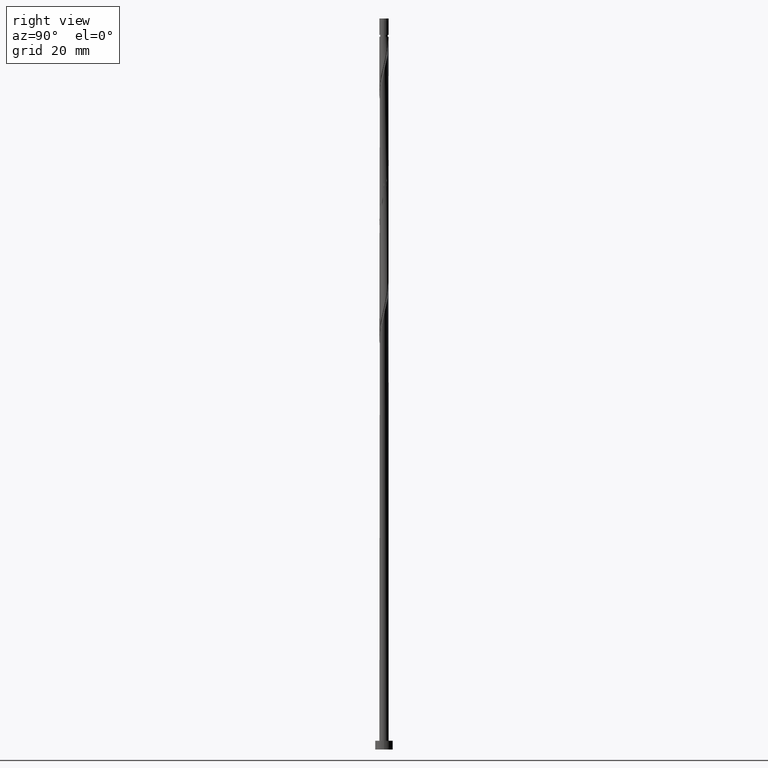
[diagram: clean part render]
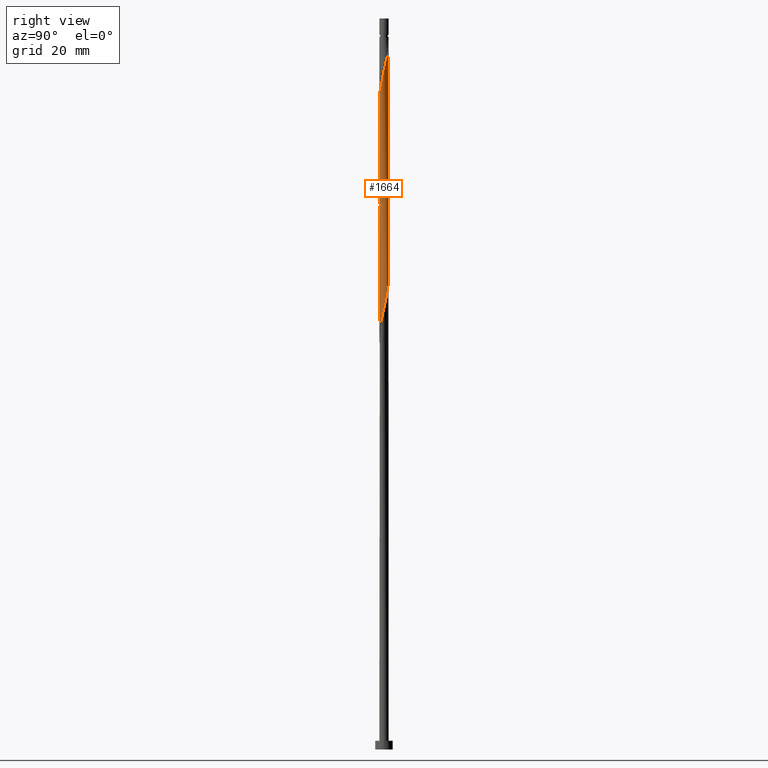
[diagram: same view with one face highlighted and labeled with its STEP entity id]
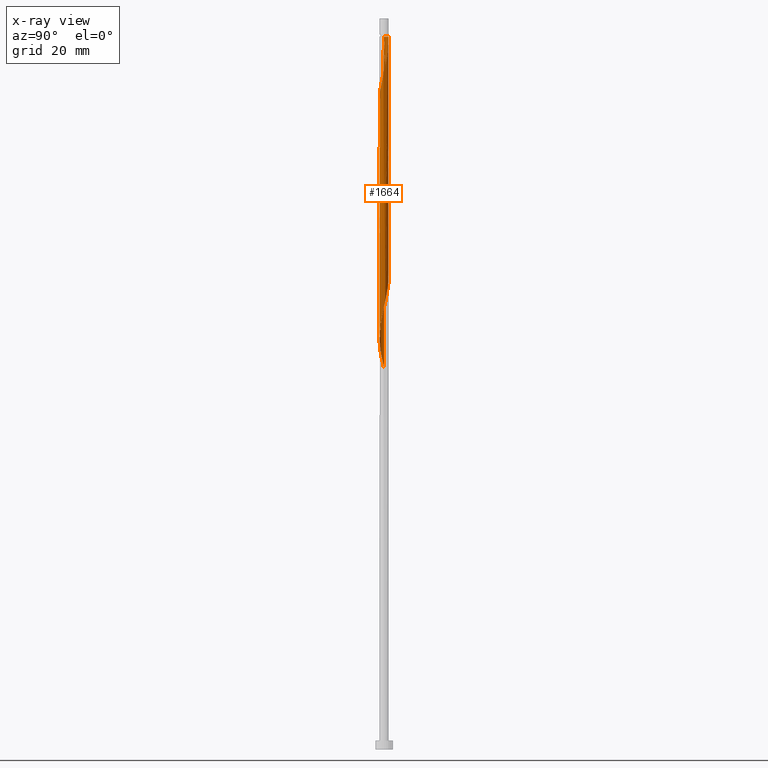
[diagram: x-ray of the same camera — body ghosted, the highlighted face saturated]
A machine part, right view. The second image highlights one B-rep face of the part: STEP entity #1664.
The next image is the same camera in x-ray: the body ghosted, the highlighted face saturated — about 0% of this face is hidden behind the body in this view.
In plain terms, the highlighted cylindrical surface (bore or boss wall) has radius 1.6 mm, axis along (-0, -0, -1).
Its self-contained STEP definition (entity closure, byte-faithful):
#3 = CARTESIAN_POINT ( 'NONE',  ( 0.6333082990155188829, -1.482114516932721004, 143.6120116939671902 ) ) ;
#7 = CARTESIAN_POINT ( 'NONE',  ( -0.6843909329630175620, -1.446239624293986115, 179.6697040016595395 ) ) ;
#12 = CARTESIAN_POINT ( 'NONE',  ( -1.394971353447186813, -0.8073399321019413266, 133.9966270785826055 ) ) ;
#33 = LINE ( 'NONE', #1484, #836 ) ;
#44 = CARTESIAN_POINT ( 'NONE',  ( 1.594945909006415086, -0.1270730000578390861, 150.8235501555056999 ) ) ;
#46 = EDGE_CURVE ( 'NONE', #247, #1329, #1355, .T. ) ;
#67 = CARTESIAN_POINT ( 'NONE',  ( -1.600000000000002531, -0.06363700853883506869, 211.4585171439647695 ) ) ;
#78 = CARTESIAN_POINT ( 'NONE',  ( -1.518189120165080785, 0.5050760293385311295, 211.7209860529415835 ) ) ;
#81 = CARTESIAN_POINT ( 'NONE',  ( 1.594945909006418638, 0.1270730000578370045, 232.5543193862749831 ) ) ;
#87 = CARTESIAN_POINT ( 'NONE',  ( 0.8014535150113176742, -1.384800441679595151, 186.0799604119159767 ) ) ;
#91 = DIRECTION ( 'NONE',  ( -0.000000000000000000, -0.000000000000000000, -1.000000000000000000 ) ) ;
#105 = CARTESIAN_POINT ( 'NONE',  ( 1.579516453325393144, 0.3207344954616280219, 233.3556014375570555 ) ) ;
#108 = EDGE_CURVE ( 'NONE', #1136, #365, #274, .T. ) ;
#151 = CARTESIAN_POINT ( 'NONE',  ( 1.547645113330139433, 0.4500416048433567573, 194.8940629760184891 ) ) ;
#152 =( BOUNDED_CURVE ( )  B_SPLINE_CURVE ( 2, ( #230, #1195, #763, #215, #899, #503, #1170, #643, #335, #885, #87, #617, #1688, #1558, #1103, #1621, #824, #421, #7, #652, #967, #512, #1072, #254, #1059, #1581, #388, #376, #1447, #782, #791, #1409, #1685, #1673, #464, #872, #1181, #1400, #1035, #1153, #1683, #1021, #737, #613, #1561, #209, #1553, #874, #166, #689, #1464, #1477, #1275, #155, #44, #277, #571, #708, #1120, #449, #1636, #981, #842, #3, #540, #1344, #659, #942, #1466, #1068, #508, #639, #1078, #813, #954, #12, #1089, #1714, #383, #1055, #931 ),
 .UNSPECIFIED., .F., .T. ) 
 B_SPLINE_CURVE_WITH_KNOTS ( ( 3, 2, 2, 2, 2, 2, 2, 2, 2, 2, 2, 2, 2, 2, 2, 2, 2, 2, 2, 2, 2, 2, 2, 2, 2, 2, 2, 2, 2, 2, 2, 2, 2, 2, 2, 2, 2, 2, 2, 2, 3 ),
 ( 0.5545271625973832164, 0.5576923076923077094, 0.5673076923076922906, 0.5769230769230768718, 0.5865384615384615641, 0.5961538461538461453, 0.6057692307692307265, 0.6153846153846154188, 0.6250000000000000000, 0.6346153846153845812, 0.6442307692307692735, 0.6538461538461538547, 0.6634615384615384359, 0.6730769230769231282, 0.6826923076923077094, 0.6923076923076922906, 0.7019230769230768718, 0.7115384615384615641, 0.7211538461538461453, 0.7307692307692307265, 0.7403846153846154188, 0.7500000000000000000, 0.7596153846153845812, 0.7692307692307692735, 0.7788461538461538547, 0.7884615384615384359, 0.7980769230769231282, 0.8076923076923077094, 0.8173076923076922906, 0.8269230769230768718, 0.8365384615384615641, 0.8461538461538461453, 0.8557692307692307265, 0.8653846153846154188, 0.8750000000000000000, 0.8846153846153845812, 0.8942307692307692735, 0.9038461538461538547, 0.9134615384615384359, 0.9230769230769231282, 0.9295271625973832164 ),
 .UNSPECIFIED. ) 
 CURVE ( )  GEOMETRIC_REPRESENTATION_ITEM ( )  RATIONAL_B_SPLINE_CURVE ( ( 0.9061636035683077184, 0.9069090390690963677, 0.9090909090909530255, 0.9024626128164564554, 0.9090909090909530255, 0.9024626128164564554, 0.9090909090909530255, 0.9024626128164564554, 0.9090909090909530255, 0.9024626128164564554, 0.9090909090909530255, 0.9024626128164564554, 0.9090909090909530255, 0.9024626128164564554, 0.9090909090909530255, 0.9024626128164564554, 0.9090909090909530255, 0.9024626128164564554, 0.9090909090909530255, 0.9024626128164564554, 0.9090909090909530255, 0.9024626128164564554, 0.9090909090909530255, 0.9024626128164564554, 0.9090909090909530255, 0.9024626128164564554, 0.9090909090909530255, 0.9024626128164564554, 0.9090909090909530255, 0.9024626128164564554, 0.9090909090909530255, 0.9024626128164564554, 0.9090909090909530255, 0.9024626128164564554, 0.9090909090909530255, 0.9024626128164564554, 0.9090909090909530255, 0.9024626128164564554, 0.9090909090909530255, 0.9024626128164564554, 0.9090909090909530255, 0.9024626128164564554, 0.9090909090909530255, 0.9024626128164564554, 0.9090909090909530255, 0.9024626128164564554, 0.9090909090909530255, 0.9024626128164564554, 0.9090909090909530255, 0.9024626128164564554, 0.9090909090909530255, 0.9024626128164564554, 0.9090909090909530255, 0.9024626128164564554, 0.9090909090909530255, 0.9024626128164564554, 0.9090909090909530255, 0.9024626128164564554, 0.9090909090909530255, 0.9024626128164564554, 0.9090909090909530255, 0.9024626128164564554, 0.9090909090909530255, 0.9024626128164564554, 0.9090909090909530255, 0.9024626128164564554, 0.9090909090909530255, 0.9024626128164564554, 0.9090909090909530255, 0.9024626128164564554, 0.9090909090909530255, 0.9024626128164564554, 0.9090909090909530255, 0.9024626128164564554, 0.9090909090909530255, 0.9024626128164564554, 0.9090909090909530255, 0.9024626128164564554, 0.9090909090909530255, 0.9046444828383131131, 0.9061636035683077184 ) ) 
 REPRESENTATION_ITEM ( '' )  );
#155 = CARTESIAN_POINT ( 'NONE',  ( 1.610375364687439914, 0.06658849534595141784, 151.6248322067877439 ) ) ;
#159 = CARTESIAN_POINT ( 'NONE',  ( -0.3183959798741770042, 1.568000000000436822, 243.7722681042237980 ) ) ;
#166 = CARTESIAN_POINT ( 'NONE',  ( 1.278099141231814784, 0.9625292645849760076, 155.6312424631980491 ) ) ;
#187 = EDGE_CURVE ( 'NONE', #718, #1329, #1394, .T. ) ;
#195 = CARTESIAN_POINT ( 'NONE',  ( -1.353200698052673401, -0.8537258756707375440, 214.9261142580698731 ) ) ;
#202 = CARTESIAN_POINT ( 'NONE',  ( 1.278099141231817226, -0.9625292645849793383, 227.7466270785826339 ) ) ;
#209 = CARTESIAN_POINT ( 'NONE',  ( 0.8599962163594102593, 1.363139519914283060, 158.0350886170441527 ) ) ;
#215 = CARTESIAN_POINT ( 'NONE',  ( 1.579516453325389813, -0.3207344954616281885, 191.6889347708903131 ) ) ;
#217 = CARTESIAN_POINT ( 'NONE',  ( -0.1280063101816146798, 1.606660271326313394, 242.9709860529416687 ) ) ;
#222 = CARTESIAN_POINT ( 'NONE',  ( -0.8014535150113178963, 1.384800441679595151, 206.9132937452492911 ) ) ;
#223 = CARTESIAN_POINT ( 'NONE',  ( 1.010611572687928117, -1.240429058491150371, 226.1440629760185459 ) ) ;
#230 = CARTESIAN_POINT ( 'NONE',  ( 1.599999999999999867, 1.263776806062690875E-15, 193.0168566467822018 ) ) ;
#247 = VERTEX_POINT ( 'NONE', #1229 ) ;
#254 = CARTESIAN_POINT ( 'NONE',  ( -1.394971353447186813, -0.8073399321019413266, 175.6632937452492911 ) ) ;
#272 = ORIENTED_EDGE ( 'NONE', *, *, #108, .F. ) ;
#274 = LINE ( 'NONE', #314, #590 ) ;
#277 = CARTESIAN_POINT ( 'NONE',  ( 1.579516453325389813, -0.3207344954616281885, 150.0222681042236275 ) ) ;
#308 = ORIENTED_EDGE ( 'NONE', *, *, #1167, .F. ) ;
#314 = CARTESIAN_POINT ( 'NONE',  ( 1.600000000000000089, 1.959434878635765230E-16, 250.0000000000000000 ) ) ;
#320 = CARTESIAN_POINT ( 'NONE',  ( -1.579516453325393144, -0.3207344954616282440, 212.5222681042237411 ) ) ;
#327 = CARTESIAN_POINT ( 'NONE',  ( -1.599999999999999423, 1.009525850996823193E-15, 213.8501899801155162 ) ) ;
#334 = CARTESIAN_POINT ( 'NONE',  ( -0.06610299024276355961, 1.598633915154112017, 203.7081655401210867 ) ) ;
#335 = CARTESIAN_POINT ( 'NONE',  ( 1.109569170053842146, -1.152760277276253964, 187.6825245144800647 ) ) ;
#343 = CARTESIAN_POINT ( 'NONE',  ( -1.109569170053842146, 1.152760277276253964, 208.5158578478133791 ) ) ;
#345 = CARTESIAN_POINT ( 'NONE',  ( 0.8014535150113204498, 1.384800441679597371, 238.9645757965313919 ) ) ;
#350 = CARTESIAN_POINT ( 'NONE',  ( -1.599999999999999645, 0.06363700853883152986, 213.5860190644825707 ) ) ;
#365 = VERTEX_POINT ( 'NONE', #1626 ) ;
#368 = CARTESIAN_POINT ( 'NONE',  ( 1.547645113330141653, -0.4500416048433598659, 230.1504732324287943 ) ) ;
#376 = CARTESIAN_POINT ( 'NONE',  ( -1.610375364687439914, -0.06658849534595205621, 172.4581655401210583 ) ) ;
#383 = CARTESIAN_POINT ( 'NONE',  ( -1.579010239008790117, -0.2583150500946547745, 131.5927809247364735 ) ) ;
#388 = CARTESIAN_POINT ( 'NONE',  ( -1.579010239008790117, -0.2583150500946547745, 173.2594475914031307 ) ) ;
#390 = CYLINDRICAL_SURFACE ( 'NONE', #1015, 1.600000000000000089 ) ;
#411 = CARTESIAN_POINT ( 'NONE',  ( 1.394971353447186813, 0.8073399321019406605, 196.4966270785826055 ) ) ;
#421 = CARTESIAN_POINT ( 'NONE',  ( -0.5087856495666250867, -1.529339728673688725, 180.4709860529415835 ) ) ;
#426 = CARTESIAN_POINT ( 'NONE',  ( 1.600000000000000089, 1.959434878635765230E-16, 243.7722681042237980 ) ) ;
#433 = FACE_OUTER_BOUND ( 'NONE', #1365, .T. ) ;
#449 = CARTESIAN_POINT ( 'NONE',  ( 1.249539609100567716, -1.018034188126039741, 146.8171398990954231 ) ) ;
#463 = CARTESIAN_POINT ( 'NONE',  ( -1.594945909006418638, -0.1270730000578375873, 211.7209860529416687 ) ) ;
#464 = CARTESIAN_POINT ( 'NONE',  ( -1.109569170053842146, 1.152760277276253964, 166.8491911811467219 ) ) ;
#475 = CARTESIAN_POINT ( 'NONE',  ( -0.2602122906671426317, 1.590607558981913972, 204.5094475914031023 ) ) ;
#492 = CARTESIAN_POINT ( 'NONE',  ( 0.8599962163594102593, 1.363139519914283060, 199.7017552837107814 ) ) ;
#495 = CARTESIAN_POINT ( 'NONE',  ( 1.471308233388665565, -0.6286907684726513734, 229.3491911811467787 ) ) ;
#497 = CARTESIAN_POINT ( 'NONE',  ( 0.4467602948413332276, 1.536361037957320264, 240.5671398990954799 ) ) ;
#503 = CARTESIAN_POINT ( 'NONE',  ( 1.456861787004771758, -0.6894175632154336819, 190.0863706683261967 ) ) ;
#508 = CARTESIAN_POINT ( 'NONE',  ( -0.6843909329630175620, -1.446239624293986115, 138.0030373349929107 ) ) ;
#512 = CARTESIAN_POINT ( 'NONE',  ( -1.161226929016442977, -1.117718597068011466, 177.2658578478134075 ) ) ;
#515 = CARTESIAN_POINT ( 'NONE',  ( 0.9695987310071199072, 1.287486366426470852, 238.1632937452492911 ) ) ;
#540 = CARTESIAN_POINT ( 'NONE',  ( 0.4467602948413308406, -1.536361037957318043, 142.8107296426852031 ) ) ;
#545 = CARTESIAN_POINT ( 'NONE',  ( 0.000000000000000000, 0.000000000000000000, 250.0000000000000000 ) ) ;
#560 = CARTESIAN_POINT ( 'NONE',  ( -1.599999999999999867, -1.966705917127145592E-15, 130.5168566467822302 ) ) ;
#571 = CARTESIAN_POINT ( 'NONE',  ( 1.518189120165080785, -0.5050760293385315736, 149.2209860529416119 ) ) ;
#578 = CARTESIAN_POINT ( 'NONE',  ( 1.599999999999999423, 0.1300103016592727978, 193.5565573841304854 ) ) ;
#590 = VECTOR ( 'NONE', #91, 1000.000000000000000 ) ;
#599 = CARTESIAN_POINT ( 'NONE',  ( -1.456861787004774644, -0.6894175632154346811, 214.1248322067878007 ) ) ;
#609 = CARTESIAN_POINT ( 'NONE',  ( -0.9695987310071165766, 1.287486366426468853, 207.7145757965313067 ) ) ;
#612 = CARTESIAN_POINT ( 'NONE',  ( 1.456861787004775088, 0.6894175632154343480, 234.9581655401211435 ) ) ;
#613 = CARTESIAN_POINT ( 'NONE',  ( 0.5087856495666253087, 1.529339728673688725, 159.6376527196082122 ) ) ;
#617 = CARTESIAN_POINT ( 'NONE',  ( 0.6333082990155188829, -1.482114516932721004, 185.2786783606338759 ) ) ;
#627 = CARTESIAN_POINT ( 'NONE',  ( -0.9695987310071191301, -1.287486366426471296, 217.3299604119160051 ) ) ;
#639 = CARTESIAN_POINT ( 'NONE',  ( -0.8599962163594100373, -1.363139519914283060, 137.2017552837108383 ) ) ;
#643 = CARTESIAN_POINT ( 'NONE',  ( 1.249539609100567716, -1.018034188126039741, 188.4838065657620803 ) ) ;
#652 = CARTESIAN_POINT ( 'NONE',  ( -0.8599962163594100373, -1.363139519914283060, 178.8684219503774955 ) ) ;
#659 = CARTESIAN_POINT ( 'NONE',  ( 0.06610299024276310165, -1.598633915154112017, 141.2081655401211151 ) ) ;
#673 = DIRECTION ( 'NONE',  ( -0.000000000000000000, -0.000000000000000000, -1.000000000000000000 ) ) ;
#677 = CARTESIAN_POINT ( 'NONE',  ( 1.161226929016442977, 1.117718597068011466, 198.0991911811466650 ) ) ;
#678 = DIRECTION ( 'NONE',  ( -1.000000000000000000, 0.000000000000000000, 0.000000000000000000 ) ) ;
#686 = CARTESIAN_POINT ( 'NONE',  ( 1.599999999999999867, 1.263776806062690875E-15, 193.0168566467822018 ) ) ;
#689 = CARTESIAN_POINT ( 'NONE',  ( 1.394971353447186813, 0.8073399321019406605, 154.8299604119159767 ) ) ;
#705 = CARTESIAN_POINT ( 'NONE',  ( 1.579010239008790117, 0.2583150500946548855, 194.0927809247364451 ) ) ;
#707 = CARTESIAN_POINT ( 'NONE',  ( 0.000000000000000000, 0.000000000000000000, 243.7722681042236843 ) ) ;
#708 = CARTESIAN_POINT ( 'NONE',  ( 1.456861787004771758, -0.6894175632154336819, 148.4197040016595395 ) ) ;
#717 = CARTESIAN_POINT ( 'NONE',  ( -1.600000000000000089, 0.000000000000000000, 250.0000000000000000 ) ) ;
#718 = VERTEX_POINT ( 'NONE', #1652 ) ;
#737 = CARTESIAN_POINT ( 'NONE',  ( 0.3183959798741204938, 1.567999999999999616, 160.4389347708902847 ) ) ;
#743 = CARTESIAN_POINT ( 'NONE',  ( -0.06610299024276460045, -1.598633915154114460, 221.3363706683262819 ) ) ;
#751 = CARTESIAN_POINT ( 'NONE',  ( -1.456861787004771758, 0.6894175632154339040, 210.9197040016595395 ) ) ;
#758 = CARTESIAN_POINT ( 'NONE',  ( 1.161226929016444753, -1.117718597068014796, 226.9453450273005615 ) ) ;
#763 = CARTESIAN_POINT ( 'NONE',  ( 1.594945909006415086, -0.1270730000578390861, 192.4902168221723286 ) ) ;
#765 = CARTESIAN_POINT ( 'NONE',  ( 1.518189120165084338, 0.5050760293385304633, 234.1568834888390711 ) ) ;
#782 = CARTESIAN_POINT ( 'NONE',  ( -1.579516453325389813, 0.3207344954616279664, 170.8556014375570271 ) ) ;
#785 = CARTESIAN_POINT ( 'NONE',  ( 1.249539609100571269, 1.018034188126039519, 236.5607296426852031 ) ) ;
#790 = ORIENTED_EDGE ( 'NONE', *, *, #914, .F. ) ;
#791 = CARTESIAN_POINT ( 'NONE',  ( -1.518189120165080785, 0.5050760293385311295, 170.0543193862749547 ) ) ;
#799 = AXIS2_PLACEMENT_3D ( 'NONE', #707, #1604, #678 ) ;
#804 = DIRECTION ( 'NONE',  ( -1.000000000000000000, 0.000000000000000000, 0.000000000000000000 ) ) ;
#813 = CARTESIAN_POINT ( 'NONE',  ( -1.161226929016442977, -1.117718597068011466, 135.5991911811467787 ) ) ;
#824 = CARTESIAN_POINT ( 'NONE',  ( -0.3183959798741202163, -1.567999999999999616, 181.2722681042236843 ) ) ;
#829 = ORIENTED_EDGE ( 'NONE', *, *, #187, .T. ) ;
#836 = VECTOR ( 'NONE', #673, 1000.000000000000000 ) ;
#842 = CARTESIAN_POINT ( 'NONE',  ( 0.8014535150113176742, -1.384800441679595151, 144.4132937452493195 ) ) ;
#854 = VERTEX_POINT ( 'NONE', #1519 ) ;
#868 = CARTESIAN_POINT ( 'NONE',  ( -1.518189120165083894, -0.5050760293385313515, 213.3235501555057851 ) ) ;
#872 = CARTESIAN_POINT ( 'NONE',  ( -0.9695987310071165766, 1.287486366426468853, 166.0479091298647063 ) ) ;
#874 = CARTESIAN_POINT ( 'NONE',  ( 1.161226929016442977, 1.117718597068011466, 156.4325245144801215 ) ) ;
#877 = CARTESIAN_POINT ( 'NONE',  ( -1.579516453325389813, 0.3207344954616279664, 212.5222681042236843 ) ) ;
#884 = CARTESIAN_POINT ( 'NONE',  ( 0.3183959798741204938, 1.567999999999999616, 202.1056014375569987 ) ) ;
#885 = CARTESIAN_POINT ( 'NONE',  ( 0.9695987310071162435, -1.287486366426469520, 186.8812424631979923 ) ) ;
#890 = CARTESIAN_POINT ( 'NONE',  ( -0.6333082990155192160, 1.482114516932720782, 206.1120116939671902 ) ) ;
#892 = CARTESIAN_POINT ( 'NONE',  ( 0.2602122906671442415, 1.590607558981916858, 241.3684219503775239 ) ) ;
#898 = CARTESIAN_POINT ( 'NONE',  ( -1.594945909006415086, 0.1270730000578381147, 213.3235501555056999 ) ) ;
#899 = CARTESIAN_POINT ( 'NONE',  ( 1.518189120165080785, -0.5050760293385315736, 190.8876527196082975 ) ) ;
#900 = CARTESIAN_POINT ( 'NONE',  ( -0.2602122906671440750, -1.590607558981916858, 220.5350886170442095 ) ) ;
#902 = CARTESIAN_POINT ( 'NONE',  ( 0.6333082990155209924, 1.482114516932723891, 239.7658578478134359 ) ) ;
#907 = CARTESIAN_POINT ( 'NONE',  ( 0.5087856495666247536, -1.529339728673691834, 223.7402168221724139 ) ) ;
#914 = EDGE_CURVE ( 'NONE', #365, #1218, #152, .T. ) ;
#916 = CARTESIAN_POINT ( 'NONE',  ( -1.109569170053845255, -1.152760277276255740, 216.5286783606339895 ) ) ;
#925 = ORIENTED_EDGE ( 'NONE', *, *, #108, .T. ) ;
#927 =( BOUNDED_CURVE ( )  B_SPLINE_CURVE ( 2, ( #327, #350, #898, #877, #78, #751, #1425, #1525, #343, #609, #222, #890, #1178, #475, #334, #1305, #884, #1185, #1697, #492, #1396, #677, #1500, #411, #1086, #151, #705, #578, #686 ),
 .UNSPECIFIED., .F., .T. ) 
 B_SPLINE_CURVE_WITH_KNOTS ( ( 3, 2, 2, 2, 2, 2, 2, 2, 2, 2, 2, 2, 2, 2, 3 ),
 ( 0.4295271625973833274, 0.4326923076923077094, 0.4423076923076922906, 0.4519230769230769273, 0.4615384615384615641, 0.4711538461538461453, 0.4807692307692307820, 0.4903846153846153633, 0.5000000000000000000, 0.5096153846153845812, 0.5192307692307692735, 0.5288461538461538547, 0.5384615384615384359, 0.5480769230769231282, 0.5545271625973832164 ),
 .UNSPECIFIED. ) 
 CURVE ( )  GEOMETRIC_REPRESENTATION_ITEM ( )  RATIONAL_B_SPLINE_CURVE ( ( 0.9061636035683078294, 0.9069090390690964787, 0.9090909090909530255, 0.9024626128164564554, 0.9090909090909530255, 0.9024626128164564554, 0.9090909090909530255, 0.9024626128164564554, 0.9090909090909530255, 0.9024626128164564554, 0.9090909090909530255, 0.9024626128164564554, 0.9090909090909530255, 0.9024626128164564554, 0.9090909090909530255, 0.9024626128164564554, 0.9090909090909530255, 0.9024626128164564554, 0.9090909090909530255, 0.9024626128164564554, 0.9090909090909530255, 0.9024626128164564554, 0.9090909090909530255, 0.9024626128164564554, 0.9090909090909530255, 0.9024626128164564554, 0.9090909090909530255, 0.9046444828383131131, 0.9061636035683077184 ) ) 
 REPRESENTATION_ITEM ( '' )  );
#931 = CARTESIAN_POINT ( 'NONE',  ( -1.599999999999999867, -1.966705917127145592E-15, 130.5168566467822302 ) ) ;
#942 = CARTESIAN_POINT ( 'NONE',  ( -0.1280063101816159288, -1.606660271326309841, 140.4068834888390143 ) ) ;
#954 = CARTESIAN_POINT ( 'NONE',  ( -1.278099141231814784, -0.9625292645849764517, 134.7979091298647347 ) ) ;
#967 = CARTESIAN_POINT ( 'NONE',  ( -1.010611572687926785, -1.240429058491147707, 178.0671398990953946 ) ) ;
#981 = CARTESIAN_POINT ( 'NONE',  ( 0.9695987310071162435, -1.287486366426469520, 145.2145757965313351 ) ) ;
#1015 = AXIS2_PLACEMENT_3D ( 'NONE', #545, #1600, #804 ) ;
#1021 = CARTESIAN_POINT ( 'NONE',  ( 0.1280063101816155680, 1.606660271326310063, 161.2402168221723286 ) ) ;
#1025 = DIRECTION ( 'NONE',  ( -0.000000000000000000, -0.000000000000000000, -1.000000000000000000 ) ) ;
#1026 = CARTESIAN_POINT ( 'NONE',  ( 0.6843909329630177840, -1.446239624293989223, 224.5414988734544579 ) ) ;
#1032 = CARTESIAN_POINT ( 'NONE',  ( -0.6333082990155206593, -1.482114516932723891, 218.9325245144801215 ) ) ;
#1035 = CARTESIAN_POINT ( 'NONE',  ( -0.4467602948413308961, 1.536361037957318043, 163.6440629760185175 ) ) ;
#1040 = CARTESIAN_POINT ( 'NONE',  ( 1.579010239008792116, -0.2583150500946562733, 230.9517552837108667 ) ) ;
#1042 = CARTESIAN_POINT ( 'NONE',  ( -0.3183959798741770042, 1.568000000000436822, 243.7722681042237980 ) ) ;
#1055 = CARTESIAN_POINT ( 'NONE',  ( -1.599999999999999423, -0.1300103016592731864, 131.0565573841304854 ) ) ;
#1059 = CARTESIAN_POINT ( 'NONE',  ( -1.471308233388662678, -0.6286907684726498191, 174.8620116939672187 ) ) ;
#1068 = CARTESIAN_POINT ( 'NONE',  ( -0.5087856495666250867, -1.529339728673688725, 138.8043193862749263 ) ) ;
#1072 = CARTESIAN_POINT ( 'NONE',  ( -1.278099141231814784, -0.9625292645849764517, 176.4645757965313635 ) ) ;
#1078 = CARTESIAN_POINT ( 'NONE',  ( -1.010611572687926785, -1.240429058491147707, 136.4004732324287943 ) ) ;
#1086 = CARTESIAN_POINT ( 'NONE',  ( 1.471308233388662678, 0.6286907684726495971, 195.6953450273006183 ) ) ;
#1089 = CARTESIAN_POINT ( 'NONE',  ( -1.471308233388662678, -0.6286907684726498191, 133.1953450273005899 ) ) ;
#1103 = CARTESIAN_POINT ( 'NONE',  ( 0.06610299024276310165, -1.598633915154112017, 182.8748322067877723 ) ) ;
#1120 = CARTESIAN_POINT ( 'NONE',  ( 1.353200698052670070, -0.8537258756707366558, 147.6184219503775239 ) ) ;
#1136 = VERTEX_POINT ( 'NONE', #426 ) ;
#1144 = ORIENTED_EDGE ( 'NONE', *, *, #46, .F. ) ;
#1148 = LINE ( 'NONE', #717, #1649 ) ;
#1153 = CARTESIAN_POINT ( 'NONE',  ( -0.2602122906671426317, 1.590607558981913972, 162.8427809247364451 ) ) ;
#1161 = CARTESIAN_POINT ( 'NONE',  ( 1.353200698052673401, 0.8537258756707375440, 235.7594475914032159 ) ) ;
#1167 = EDGE_CURVE ( 'NONE', #854, #365, #927, .T. ) ;
#1170 = CARTESIAN_POINT ( 'NONE',  ( 1.353200698052670070, -0.8537258756707366558, 189.2850886170441242 ) ) ;
#1171 = CARTESIAN_POINT ( 'NONE',  ( 0.3183959798741202718, -1.568000000000002281, 222.9389347708903699 ) ) ;
#1173 = CARTESIAN_POINT ( 'NONE',  ( 1.109569170053845477, 1.152760277276255740, 237.3620116939672755 ) ) ;
#1178 = CARTESIAN_POINT ( 'NONE',  ( -0.4467602948413308961, 1.536361037957318043, 205.3107296426852315 ) ) ;
#1181 = CARTESIAN_POINT ( 'NONE',  ( -0.8014535150113178963, 1.384800441679595151, 165.2466270785825770 ) ) ;
#1185 = CARTESIAN_POINT ( 'NONE',  ( 0.5087856495666253087, 1.529339728673688725, 201.3043193862749263 ) ) ;
#1187 = CARTESIAN_POINT ( 'NONE',  ( -0.4467602948413323949, -1.536361037957320486, 219.7338065657621939 ) ) ;
#1195 = CARTESIAN_POINT ( 'NONE',  ( 1.599999999999999645, -0.06363700853882976738, 192.7526857311491995 ) ) ;
#1218 = VERTEX_POINT ( 'NONE', #560 ) ;
#1229 = CARTESIAN_POINT ( 'NONE',  ( -1.600000000000002975, -3.813764325987972337E-16, 211.1943462283318524 ) ) ;
#1275 = CARTESIAN_POINT ( 'NONE',  ( 1.579010239008790117, 0.2583150500946548855, 152.4261142580698731 ) ) ;
#1305 = CARTESIAN_POINT ( 'NONE',  ( 0.1280063101816155680, 1.606660271326310063, 202.9068834888390143 ) ) ;
#1314 = CARTESIAN_POINT ( 'NONE',  ( 1.610375364687443023, -0.06658849534595252806, 231.7530373349929391 ) ) ;
#1329 = VERTEX_POINT ( 'NONE', #159 ) ;
#1344 = CARTESIAN_POINT ( 'NONE',  ( 0.2602122906671421876, -1.590607558981913972, 142.0094475914031023 ) ) ;
#1355 =( BOUNDED_CURVE ( )  B_SPLINE_CURVE ( 2, ( #1654, #67, #463, #320, #868, #599, #195, #1709, #916, #627, #1690, #1032, #1187, #900, #743, #1426, #1171, #907, #1026, #1551, #223, #758, #202, #1699, #495, #368, #1040, #1314, #81, #105, #765, #612, #1161, #785, #1173, #515, #345, #902, #497, #892, #1421, #217, #1042 ),
 .UNSPECIFIED., .F., .T. ) 
 B_SPLINE_CURVE_WITH_KNOTS ( ( 3, 2, 2, 2, 2, 2, 2, 2, 2, 2, 2, 2, 2, 2, 2, 2, 2, 2, 2, 2, 2, 3 ),
 ( 0.5545271625973835494, 0.5576923076923077094, 0.5673076923076922906, 0.5769230769230768718, 0.5865384615384615641, 0.5961538461538461453, 0.6057692307692308376, 0.6153846153846154188, 0.6250000000000000000, 0.6346153846153845812, 0.6442307692307691624, 0.6538461538461538547, 0.6634615384615384359, 0.6730769230769231282, 0.6826923076923077094, 0.6923076923076922906, 0.7019230769230768718, 0.7115384615384615641, 0.7211538461538461453, 0.7307692307692308376, 0.7403846153846154188, 0.7500000000000000000 ),
 .UNSPECIFIED. ) 
 CURVE ( )  GEOMETRIC_REPRESENTATION_ITEM ( )  RATIONAL_B_SPLINE_CURVE ( ( 0.9061636035683147128, 0.9069090390691034731, 0.9090909090909597978, 0.9024626128164631167, 0.9090909090909597978, 0.9024626128164631167, 0.9090909090909597978, 0.9024626128164631167, 0.9090909090909597978, 0.9024626128164631167, 0.9090909090909597978, 0.9024626128164631167, 0.9090909090909597978, 0.9024626128164631167, 0.9090909090909597978, 0.9024626128164631167, 0.9090909090909597978, 0.9024626128164631167, 0.9090909090909597978, 0.9024626128164631167, 0.9090909090909597978, 0.9024626128164631167, 0.9090909090909597978, 0.9024626128164631167, 0.9090909090909597978, 0.9024626128164631167, 0.9090909090909597978, 0.9024626128164631167, 0.9090909090909597978, 0.9024626128164631167, 0.9090909090909597978, 0.9024626128164631167, 0.9090909090909597978, 0.9024626128164631167, 0.9090909090909597978, 0.9024626128164631167, 0.9090909090909597978, 0.9024626128164631167, 0.9090909090909597978, 0.9024626128164631167, 0.9090909090909597978, 0.9024626128164631167, 0.9090909090909597978 ) ) 
 REPRESENTATION_ITEM ( '' )  );
#1357 = EDGE_CURVE ( 'NONE', #718, #854, #33, .T. ) ;
#1365 = EDGE_LOOP ( 'NONE', ( #1511, #829, #1144, #1598, #790, #272, #925, #308 ) ) ;
#1394 = CIRCLE ( 'NONE', #799, 1.599999999999982547 ) ;
#1396 = CARTESIAN_POINT ( 'NONE',  ( 1.010611572687927673, 1.240429058491147041, 198.9004732324287659 ) ) ;
#1400 = CARTESIAN_POINT ( 'NONE',  ( -0.6333082990155192160, 1.482114516932720782, 164.4453450273005615 ) ) ;
#1409 = CARTESIAN_POINT ( 'NONE',  ( -1.456861787004771758, 0.6894175632154339040, 169.2530373349928539 ) ) ;
#1421 = CARTESIAN_POINT ( 'NONE',  ( 0.06610299024276551638, 1.598633915154114460, 242.1697040016596247 ) ) ;
#1425 = CARTESIAN_POINT ( 'NONE',  ( -1.353200698052670070, 0.8537258756707365448, 210.1184219503775239 ) ) ;
#1426 = CARTESIAN_POINT ( 'NONE',  ( 0.1280063101816148463, -1.606660271326313394, 222.1376527196082975 ) ) ;
#1447 = CARTESIAN_POINT ( 'NONE',  ( -1.594945909006415086, 0.1270730000578381147, 171.6568834888390427 ) ) ;
#1464 = CARTESIAN_POINT ( 'NONE',  ( 1.471308233388662678, 0.6286907684726495971, 154.0286783606339327 ) ) ;
#1466 = CARTESIAN_POINT ( 'NONE',  ( -0.3183959798741202163, -1.567999999999999616, 139.6056014375570555 ) ) ;
#1477 = CARTESIAN_POINT ( 'NONE',  ( 1.547645113330139433, 0.4500416048433567573, 153.2273963093518887 ) ) ;
#1484 = CARTESIAN_POINT ( 'NONE',  ( -1.600000000000000089, 0.000000000000000000, 250.0000000000000000 ) ) ;
#1500 = CARTESIAN_POINT ( 'NONE',  ( 1.278099141231814784, 0.9625292645849760076, 197.2979091298646779 ) ) ;
#1511 = ORIENTED_EDGE ( 'NONE', *, *, #1357, .F. ) ;
#1519 = CARTESIAN_POINT ( 'NONE',  ( -1.599999999999999423, 1.009525850996823391E-15, 213.8501899801154877 ) ) ;
#1525 = CARTESIAN_POINT ( 'NONE',  ( -1.249539609100567938, 1.018034188126039075, 209.3171398990954799 ) ) ;
#1551 = CARTESIAN_POINT ( 'NONE',  ( 0.8599962163594109255, -1.363139519914286835, 225.3427809247364735 ) ) ;
#1553 = CARTESIAN_POINT ( 'NONE',  ( 1.010611572687927673, 1.240429058491147041, 157.2338065657621655 ) ) ;
#1558 = CARTESIAN_POINT ( 'NONE',  ( 0.2602122906671421876, -1.590607558981913972, 183.6761142580698163 ) ) ;
#1561 = CARTESIAN_POINT ( 'NONE',  ( 0.6843909329630184502, 1.446239624293985671, 158.8363706683262251 ) ) ;
#1580 = EDGE_CURVE ( 'NONE', #247, #1218, #1148, .T. ) ;
#1581 = CARTESIAN_POINT ( 'NONE',  ( -1.547645113330139210, -0.4500416048433575900, 174.0607296426852031 ) ) ;
#1598 = ORIENTED_EDGE ( 'NONE', *, *, #1580, .T. ) ;
#1600 = DIRECTION ( 'NONE',  ( -0.000000000000000000, -0.000000000000000000, -1.000000000000000000 ) ) ;
#1604 = DIRECTION ( 'NONE',  ( -0.000000000000000000, -0.000000000000000000, -1.000000000000000000 ) ) ;
#1621 = CARTESIAN_POINT ( 'NONE',  ( -0.1280063101816159288, -1.606660271326309841, 182.0735501555056715 ) ) ;
#1626 = CARTESIAN_POINT ( 'NONE',  ( 1.599999999999999867, 1.263776806062690678E-15, 193.0168566467822018 ) ) ;
#1636 = CARTESIAN_POINT ( 'NONE',  ( 1.109569170053842146, -1.152760277276253964, 146.0158578478134075 ) ) ;
#1649 = VECTOR ( 'NONE', #1025, 1000.000000000000000 ) ;
#1652 = CARTESIAN_POINT ( 'NONE',  ( -1.599999999999982547, 0.000000000000000000, 243.7722681042236843 ) ) ;
#1654 = CARTESIAN_POINT ( 'NONE',  ( -1.600000000000002753, -3.813764325987972337E-16, 211.1943462283318524 ) ) ;
#1664 = ADVANCED_FACE ( 'NONE', ( #433 ), #390, .T. ) ;
#1673 = CARTESIAN_POINT ( 'NONE',  ( -1.249539609100567938, 1.018034188126039075, 167.6504732324287943 ) ) ;
#1683 = CARTESIAN_POINT ( 'NONE',  ( -0.06610299024276355961, 1.598633915154112017, 162.0414988734544579 ) ) ;
#1685 = CARTESIAN_POINT ( 'NONE',  ( -1.353200698052670070, 0.8537258756707365448, 168.4517552837108383 ) ) ;
#1688 = CARTESIAN_POINT ( 'NONE',  ( 0.4467602948413308406, -1.536361037957318043, 184.4773963093518887 ) ) ;
#1690 = CARTESIAN_POINT ( 'NONE',  ( -0.8014535150113202278, -1.384800441679597371, 218.1312424631981060 ) ) ;
#1697 = CARTESIAN_POINT ( 'NONE',  ( 0.6843909329630184502, 1.446239624293985671, 200.5030373349928823 ) ) ;
#1699 = CARTESIAN_POINT ( 'NONE',  ( 1.394971353447189033, -0.8073399321019439911, 228.5479091298647063 ) ) ;
#1709 = CARTESIAN_POINT ( 'NONE',  ( -1.249539609100570381, -1.018034188126040407, 215.7273963093518887 ) ) ;
#1714 = CARTESIAN_POINT ( 'NONE',  ( -1.547645113330139210, -0.4500416048433575900, 132.3940629760185175 ) ) ;